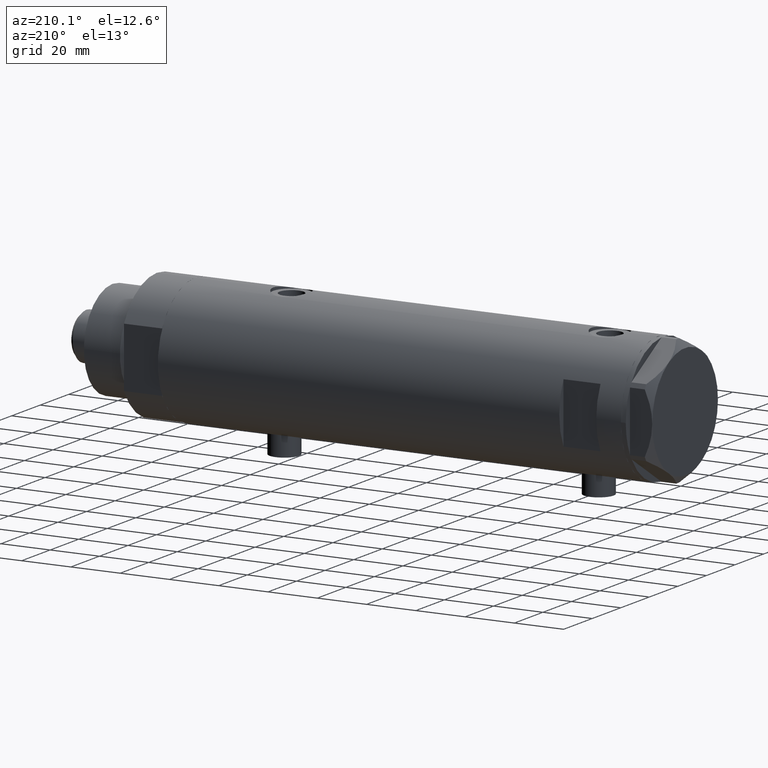
[diagram: clean part render]
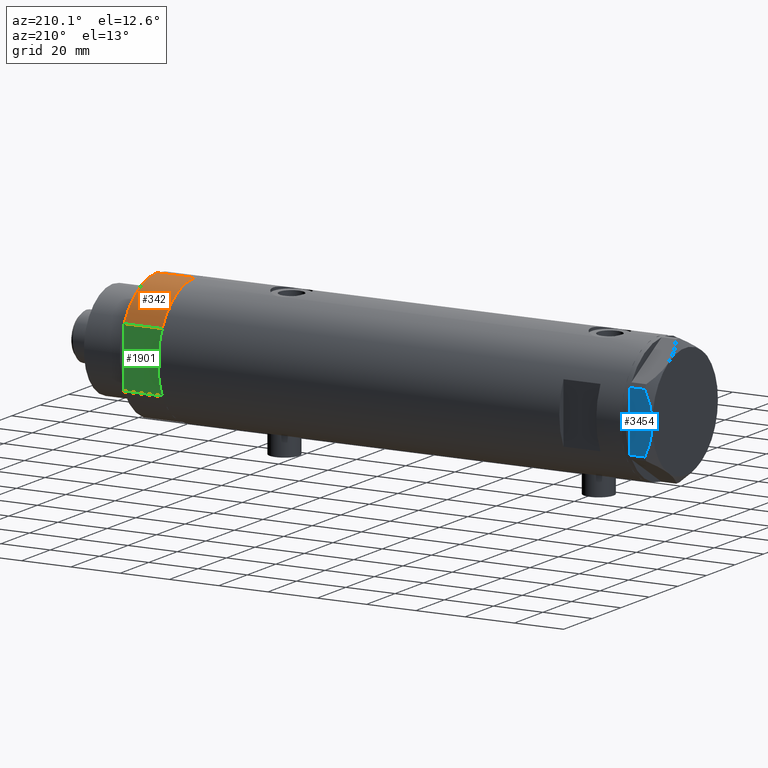
[diagram: same view with three faces highlighted in distinct colors, each labeled with its STEP entity id]
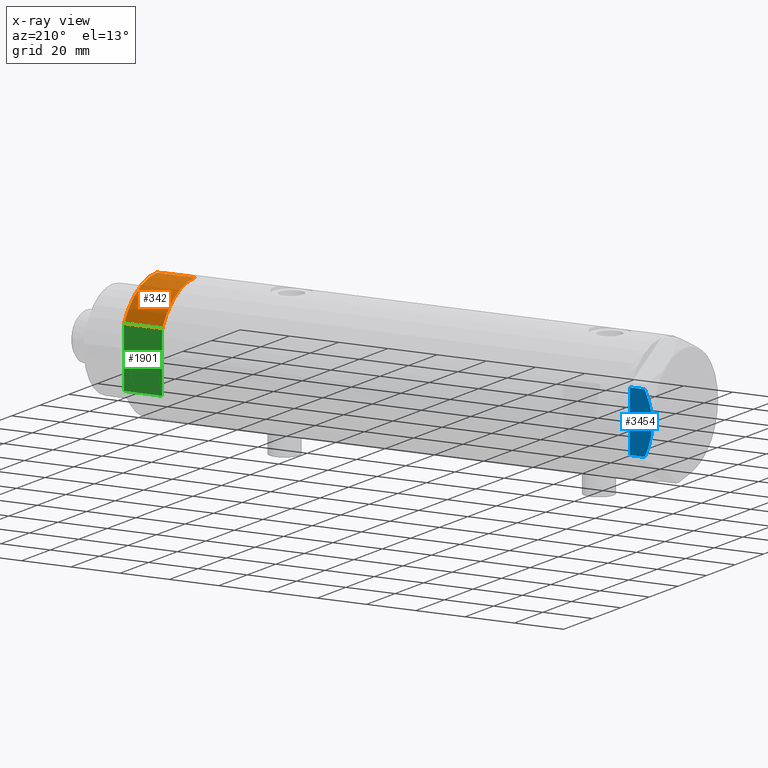
[diagram: x-ray of the same camera — body ghosted, the three highlighted faces saturated]
A machine part, auxiliary view with three faces highlighted in distinct colors.
The next image is the same camera in x-ray (body ghosted, the three faces saturated) — at least one of them is partly hidden behind the body in this view.
Their STEP definitions:

[orange] entity #342 — the highlighted cylindrical surface (partial cylindrical patch) has radius 26 mm, axis along (-1, -0, 0).
#33 = CIRCLE ( 'NONE', #947, 26.00000000000000355 ) ;
#157 = CARTESIAN_POINT ( 'NONE',  ( -12.12435565298215145, 23.00000000000000355, 0.000000000000000000 ) ) ;
#181 = LINE ( 'NONE', #157, #2702 ) ;
#306 = CARTESIAN_POINT ( 'NONE',  ( 0.000000000000000000, 0.000000000000000000, 15.50000000000000000 ) ) ;
#342 = ADVANCED_FACE ( 'NONE', ( #385 ), #3799, .T. ) ;
#385 = FACE_OUTER_BOUND ( 'NONE', #1810, .T. ) ;
#463 = VERTEX_POINT ( 'NONE', #3871 ) ;
#598 = LINE ( 'NONE', #2500, #1180 ) ;
#839 = ORIENTED_EDGE ( 'NONE', *, *, #861, .F. ) ;
#861 = EDGE_CURVE ( 'NONE', #2875, #3318, #181, .T. ) ;
#910 = CARTESIAN_POINT ( 'NONE',  ( -12.12435565298214613, 23.00000000000000355, 15.50000000000000000 ) ) ;
#947 = AXIS2_PLACEMENT_3D ( 'NONE', #4054, #4751, #1374 ) ;
#1180 = VECTOR ( 'NONE', #1390, 1000.000000000000000 ) ;
#1183 = VERTEX_POINT ( 'NONE', #4663 ) ;
#1243 = CARTESIAN_POINT ( 'NONE',  ( 0.000000000000000000, 0.000000000000000000, 15.50000000000000000 ) ) ;
#1322 = DIRECTION ( 'NONE',  ( 0.000000000000000000, 0.000000000000000000, 1.000000000000000000 ) ) ;
#1374 = DIRECTION ( 'NONE',  ( 1.000000000000000000, 0.000000000000000000, 0.000000000000000000 ) ) ;
#1390 = DIRECTION ( 'NONE',  ( -0.000000000000000000, -0.000000000000000000, -1.000000000000000000 ) ) ;
#1432 = CIRCLE ( 'NONE', #4198, 26.00000000000000355 ) ;
#1433 = EDGE_CURVE ( 'NONE', #3318, #1183, #1432, .T. ) ;
#1810 = EDGE_LOOP ( 'NONE', ( #3626, #3683, #839, #4265 ) ) ;
#1814 = DIRECTION ( 'NONE',  ( -1.000000000000000000, 0.000000000000000000, 0.000000000000000000 ) ) ;
#1888 = DIRECTION ( 'NONE',  ( -0.000000000000000000, -0.000000000000000000, -1.000000000000000000 ) ) ;
#1984 = AXIS2_PLACEMENT_3D ( 'NONE', #306, #1888, #1814 ) ;
#1995 = EDGE_CURVE ( 'NONE', #1183, #463, #598, .T. ) ;
#2350 = DIRECTION ( 'NONE',  ( 1.000000000000000000, 0.000000000000000000, 0.000000000000000000 ) ) ;
#2495 = CARTESIAN_POINT ( 'NONE',  ( -12.12435565298215145, 23.00000000000000355, 0.000000000000000000 ) ) ;
#2500 = CARTESIAN_POINT ( 'NONE',  ( -26.00000000000000355, 0.000000000000000000, 15.50000000000000000 ) ) ;
#2531 = DIRECTION ( 'NONE',  ( -0.000000000000000000, -0.000000000000000000, 1.000000000000000000 ) ) ;
#2702 = VECTOR ( 'NONE', #2531, 1000.000000000000000 ) ;
#2875 = VERTEX_POINT ( 'NONE', #2495 ) ;
#3107 = EDGE_CURVE ( 'NONE', #2875, #463, #33, .T. ) ;
#3318 = VERTEX_POINT ( 'NONE', #910 ) ;
#3626 = ORIENTED_EDGE ( 'NONE', *, *, #1995, .F. ) ;
#3683 = ORIENTED_EDGE ( 'NONE', *, *, #1433, .F. ) ;
#3799 = CYLINDRICAL_SURFACE ( 'NONE', #1984, 26.00000000000000355 ) ;
#3871 = CARTESIAN_POINT ( 'NONE',  ( -26.00000000000000355, 0.000000000000000000, 0.000000000000000000 ) ) ;
#4054 = CARTESIAN_POINT ( 'NONE',  ( 0.000000000000000000, 0.000000000000000000, 0.000000000000000000 ) ) ;
#4198 = AXIS2_PLACEMENT_3D ( 'NONE', #1243, #1322, #2350 ) ;
#4265 = ORIENTED_EDGE ( 'NONE', *, *, #3107, .T. ) ;
#4663 = CARTESIAN_POINT ( 'NONE',  ( -26.00000000000000355, 0.000000000000000000, 15.50000000000000000 ) ) ;
#4751 = DIRECTION ( 'NONE',  ( 0.000000000000000000, 0.000000000000000000, 1.000000000000000000 ) ) ;

[blue] entity #3454 — the highlighted planar face has unit normal (0, -1, 0).
#39 = CARTESIAN_POINT ( 'NONE',  ( 22.99999999999990763, 4.203926054642127319, 8.641681223122510858 ) ) ;
#50 = EDGE_CURVE ( 'NONE', #417, #1494, #603, .T. ) ;
#63 = CARTESIAN_POINT ( 'NONE',  ( 22.99999999999995026, 2.373657066004705010E-13, 9.000000000000000000 ) ) ;
#131 = CARTESIAN_POINT ( 'NONE',  ( 23.00000000000008527, -13.27905619136115867, 9.000000000000000000 ) ) ;
#161 = B_SPLINE_CURVE_WITH_KNOTS ( 'NONE', 3,
 ( #3940, #2036, #3556, #1225, #848, #172, #1672, #573, #3589, #4348 ),
 .UNSPECIFIED., .F., .F.,
 ( 4, 2, 2, 2, 4 ),
 ( 0.03516523594057417712, 0.03831677594541235687, 0.03989254594783144675, 0.04146831595025053663, 0.04777139595992689614 ),
 .UNSPECIFIED. ) ;
#172 = CARTESIAN_POINT ( 'NONE',  ( 23.00000000000002842, -7.239756182922028493, 7.892186063422852449 ) ) ;
#187 = VECTOR ( 'NONE', #3447, 1000.000000000000000 ) ;
#389 = LINE ( 'NONE', #4469, #500 ) ;
#417 = VERTEX_POINT ( 'NONE', #1981 ) ;
#455 = VERTEX_POINT ( 'NONE', #3061 ) ;
#500 = VECTOR ( 'NONE', #1891, 1000.000000000000000 ) ;
#562 = VECTOR ( 'NONE', #4843, 1000.000000000000000 ) ;
#573 = CARTESIAN_POINT ( 'NONE',  ( 22.99999999999999289, -4.194757081058811288, 8.703000351525204792 ) ) ;
#603 = LINE ( 'NONE', #3260, #3320 ) ;
#804 = EDGE_CURVE ( 'NONE', #1752, #417, #389, .T. ) ;
#848 = CARTESIAN_POINT ( 'NONE',  ( 23.00000000000003197, -8.246028007352183664, 7.571131808646910599 ) ) ;
#1005 = LINE ( 'NONE', #2201, #562 ) ;
#1224 = FACE_OUTER_BOUND ( 'NONE', #1795, .T. ) ;
#1225 = CARTESIAN_POINT ( 'NONE',  ( 23.00000000000004263, -8.748091966971204059, 7.396818978284578350 ) ) ;
#1234 = EDGE_CURVE ( 'NONE', #1752, #1403, #161, .T. ) ;
#1238 = LINE ( 'NONE', #2755, #4217 ) ;
#1272 = DIRECTION ( 'NONE',  ( 1.032024811306395780E-14, -1.000000000000000000, 0.000000000000000000 ) ) ;
#1329 = EDGE_CURVE ( 'NONE', #2305, #455, #1005, .T. ) ;
#1403 = VERTEX_POINT ( 'NONE', #4094 ) ;
#1424 = ORIENTED_EDGE ( 'NONE', *, *, #3516, .T. ) ;
#1470 = CARTESIAN_POINT ( 'NONE',  ( 22.99999999999993960, 1.063773509315896648, 8.981438083606837708 ) ) ;
#1494 = VERTEX_POINT ( 'NONE', #4780 ) ;
#1558 = CARTESIAN_POINT ( 'NONE',  ( 22.99999999999994671, 0.5295934231899334099, 9.000000000000095923 ) ) ;
#1599 = AXIS2_PLACEMENT_3D ( 'NONE', #131, #4640, #1272 ) ;
#1624 = CARTESIAN_POINT ( 'NONE',  ( 23.00000000000007461, -12.15905619136115412, 5.983800287807623519 ) ) ;
#1672 = CARTESIAN_POINT ( 'NONE',  ( 23.00000000000002132, -6.734330413511252722, 8.039389741252669808 ) ) ;
#1752 = VERTEX_POINT ( 'NONE', #1624 ) ;
#1795 = EDGE_LOOP ( 'NONE', ( #4593, #1968, #3016, #4027, #1894, #1424, #3268 ) ) ;
#1891 = DIRECTION ( 'NONE',  ( 0.000000000000000000, 0.000000000000000000, -1.000000000000000000 ) ) ;
#1894 = ORIENTED_EDGE ( 'NONE', *, *, #1329, .T. ) ;
#1932 = CARTESIAN_POINT ( 'NONE',  ( 22.99999999999987921, 7.253003311474552461, 7.903276810347635184 ) ) ;
#1964 = B_SPLINE_CURVE_WITH_KNOTS ( 'NONE', 3,
 ( #63, #1558, #1470, #2283, #3055, #39, #4850, #1932, #3412, #4566, #2958, #4484, #3441, #3003 ),
 .UNSPECIFIED., .F., .F.,
 ( 4, 2, 2, 2, 2, 2, 4 ),
 ( 0.04777139595992689614, 0.04934380568070229067, 0.05091621540147768521, 0.05406103484302848122, 0.05720585428457927030, 0.05877826400535466483, 0.06035067372613005937 ),
 .UNSPECIFIED. ) ;
#1968 = ORIENTED_EDGE ( 'NONE', *, *, #804, .T. ) ;
#1981 = CARTESIAN_POINT ( 'NONE',  ( 23.00000000000007461, -12.15905619136115590, 0.000000000000000000 ) ) ;
#2027 = VERTEX_POINT ( 'NONE', #2278 ) ;
#2036 = CARTESIAN_POINT ( 'NONE',  ( 23.00000000000006395, -11.20825071633898240, 6.428173306378455187 ) ) ;
#2201 = CARTESIAN_POINT ( 'NONE',  ( 23.00000000000008527, -13.27905619136115867, 0.000000000000000000 ) ) ;
#2278 = CARTESIAN_POINT ( 'NONE',  ( 22.99999999999982236, 12.15905619136164262, 5.983800287807618190 ) ) ;
#2283 = CARTESIAN_POINT ( 'NONE',  ( 22.99999999999992539, 2.119709279062085727, 8.908535212173203988 ) ) ;
#2305 = VERTEX_POINT ( 'NONE', #2496 ) ;
#2392 = DIRECTION ( 'NONE',  ( 0.000000000000000000, 0.000000000000000000, 1.000000000000000000 ) ) ;
#2496 = CARTESIAN_POINT ( 'NONE',  ( 22.99999999999982592, 12.12435565298247653, 0.000000000000000000 ) ) ;
#2658 = EDGE_CURVE ( 'NONE', #1403, #2027, #1964, .T. ) ;
#2700 = LINE ( 'NONE', #4195, #187 ) ;
#2739 = PLANE ( 'NONE',  #1599 ) ;
#2755 = CARTESIAN_POINT ( 'NONE',  ( 22.99999999999982236, 12.15905619136163729, 9.000000000000000000 ) ) ;
#2958 = CARTESIAN_POINT ( 'NONE',  ( 22.99999999999983658, 10.22738952213810926, 6.832470313674774864 ) ) ;
#3003 = CARTESIAN_POINT ( 'NONE',  ( 22.99999999999982236, 12.15905619136164262, 5.983800287807618190 ) ) ;
#3016 = ORIENTED_EDGE ( 'NONE', *, *, #50, .T. ) ;
#3055 = CARTESIAN_POINT ( 'NONE',  ( 22.99999999999992184, 2.643615312305318099, 8.854304560636265364 ) ) ;
#3061 = CARTESIAN_POINT ( 'NONE',  ( 22.99999999999982236, 12.15905619136163729, 0.000000000000000000 ) ) ;
#3260 = CARTESIAN_POINT ( 'NONE',  ( 23.00000000000008527, -13.27905619136115867, 0.000000000000000000 ) ) ;
#3268 = ORIENTED_EDGE ( 'NONE', *, *, #2658, .F. ) ;
#3320 = VECTOR ( 'NONE', #3616, 1000.000000000000000 ) ;
#3412 = CARTESIAN_POINT ( 'NONE',  ( 22.99999999999986500, 8.252113629125430450, 7.581642062680224115 ) ) ;
#3441 = CARTESIAN_POINT ( 'NONE',  ( 22.99999999999982947, 11.68282849742352525, 6.206372352695418648 ) ) ;
#3447 = DIRECTION ( 'NONE',  ( -1.032024811306395780E-14, 1.000000000000000000, 0.000000000000000000 ) ) ;
#3454 = ADVANCED_FACE ( 'NONE', ( #1224 ), #2739, .F. ) ;
#3516 = EDGE_CURVE ( 'NONE', #455, #2027, #1238, .T. ) ;
#3556 = CARTESIAN_POINT ( 'NONE',  ( 23.00000000000005684, -10.23890159976104641, 6.840812428290920622 ) ) ;
#3589 = CARTESIAN_POINT ( 'NONE',  ( 22.99999999999997513, -2.122900714017905699, 9.000000000000095923 ) ) ;
#3616 = DIRECTION ( 'NONE',  ( -1.032024811306395780E-14, 1.000000000000000000, 0.000000000000000000 ) ) ;
#3940 = CARTESIAN_POINT ( 'NONE',  ( 23.00000000000007461, -12.15905619136115412, 5.983800287807623519 ) ) ;
#4027 = ORIENTED_EDGE ( 'NONE', *, *, #4355, .T. ) ;
#4094 = CARTESIAN_POINT ( 'NONE',  ( 22.99999999999995026, 2.373657066004705010E-13, 9.000000000000000000 ) ) ;
#4195 = CARTESIAN_POINT ( 'NONE',  ( 23.00000000000008527, -13.27905619136115867, 0.000000000000000000 ) ) ;
#4217 = VECTOR ( 'NONE', #2392, 1000.000000000000000 ) ;
#4348 = CARTESIAN_POINT ( 'NONE',  ( 22.99999999999995026, 2.373657066004705010E-13, 9.000000000000000000 ) ) ;
#4355 = EDGE_CURVE ( 'NONE', #1494, #2305, #2700, .T. ) ;
#4469 = CARTESIAN_POINT ( 'NONE',  ( 23.00000000000007461, -12.15905619136115590, 9.000000000000000000 ) ) ;
#4484 = CARTESIAN_POINT ( 'NONE',  ( 22.99999999999984368, 11.20155944044832630, 6.421102682632754188 ) ) ;
#4566 = CARTESIAN_POINT ( 'NONE',  ( 22.99999999999985079, 9.734726261263462632, 7.028924700095659617 ) ) ;
#4593 = ORIENTED_EDGE ( 'NONE', *, *, #1234, .F. ) ;
#4640 = DIRECTION ( 'NONE',  ( -1.000000000000000000, -1.032024811306395780E-14, 0.000000000000000000 ) ) ;
#4780 = CARTESIAN_POINT ( 'NONE',  ( 23.00000000000007461, -12.12435565298200224, 0.000000000000000000 ) ) ;
#4843 = DIRECTION ( 'NONE',  ( -1.032024811306395780E-14, 1.000000000000000000, 0.000000000000000000 ) ) ;
#4850 = CARTESIAN_POINT ( 'NONE',  ( 22.99999999999990052, 5.228918809624284236, 8.433337033849852560 ) ) ;

[green] entity #1901 — the highlighted planar face has unit normal (0, -1, -0).
#157 = CARTESIAN_POINT ( 'NONE',  ( -12.12435565298215145, 23.00000000000000355, 0.000000000000000000 ) ) ;
#181 = LINE ( 'NONE', #157, #2702 ) ;
#582 = CARTESIAN_POINT ( 'NONE',  ( -12.12435565298215145, 23.00000000000000355, 15.50000000000000000 ) ) ;
#697 = VERTEX_POINT ( 'NONE', #4368 ) ;
#698 = CARTESIAN_POINT ( 'NONE',  ( -12.12435565298215145, 23.00000000000000355, 0.000000000000000000 ) ) ;
#812 = EDGE_CURVE ( 'NONE', #3424, #697, #2965, .T. ) ;
#861 = EDGE_CURVE ( 'NONE', #2875, #3318, #181, .T. ) ;
#910 = CARTESIAN_POINT ( 'NONE',  ( -12.12435565298214613, 23.00000000000000355, 15.50000000000000000 ) ) ;
#979 = PLANE ( 'NONE',  #3236 ) ;
#1027 = DIRECTION ( 'NONE',  ( 0.000000000000000000, -0.000000000000000000, -1.000000000000000000 ) ) ;
#1216 = ORIENTED_EDGE ( 'NONE', *, *, #812, .F. ) ;
#1540 = DIRECTION ( 'NONE',  ( 1.000000000000000000, 0.000000000000000000, 0.000000000000000000 ) ) ;
#1767 = VECTOR ( 'NONE', #1540, 1000.000000000000000 ) ;
#1779 = DIRECTION ( 'NONE',  ( 0.000000000000000000, -1.000000000000000000, 0.000000000000000000 ) ) ;
#1901 = ADVANCED_FACE ( 'NONE', ( #4424 ), #979, .F. ) ;
#2146 = CARTESIAN_POINT ( 'NONE',  ( -12.12435565298215145, 23.00000000000000355, 0.000000000000000000 ) ) ;
#2382 = ORIENTED_EDGE ( 'NONE', *, *, #861, .T. ) ;
#2453 = EDGE_CURVE ( 'NONE', #3318, #697, #3969, .T. ) ;
#2495 = CARTESIAN_POINT ( 'NONE',  ( -12.12435565298215145, 23.00000000000000355, 0.000000000000000000 ) ) ;
#2531 = DIRECTION ( 'NONE',  ( -0.000000000000000000, -0.000000000000000000, 1.000000000000000000 ) ) ;
#2702 = VECTOR ( 'NONE', #2531, 1000.000000000000000 ) ;
#2846 = VECTOR ( 'NONE', #3037, 1000.000000000000000 ) ;
#2875 = VERTEX_POINT ( 'NONE', #2495 ) ;
#2965 = LINE ( 'NONE', #3395, #3814 ) ;
#3037 = DIRECTION ( 'NONE',  ( 1.000000000000000000, 0.000000000000000000, 0.000000000000000000 ) ) ;
#3181 = CARTESIAN_POINT ( 'NONE',  ( 12.12435565298214080, 23.00000000000000355, 0.000000000000000000 ) ) ;
#3236 = AXIS2_PLACEMENT_3D ( 'NONE', #2146, #1779, #1027 ) ;
#3318 = VERTEX_POINT ( 'NONE', #910 ) ;
#3395 = CARTESIAN_POINT ( 'NONE',  ( 12.12435565298215323, 23.00000000000000355, 0.000000000000000000 ) ) ;
#3424 = VERTEX_POINT ( 'NONE', #3181 ) ;
#3444 = ORIENTED_EDGE ( 'NONE', *, *, #4264, .F. ) ;
#3798 = LINE ( 'NONE', #698, #1767 ) ;
#3814 = VECTOR ( 'NONE', #4805, 1000.000000000000000 ) ;
#3969 = LINE ( 'NONE', #582, #2846 ) ;
#4020 = ORIENTED_EDGE ( 'NONE', *, *, #2453, .T. ) ;
#4197 = EDGE_LOOP ( 'NONE', ( #4020, #1216, #3444, #2382 ) ) ;
#4264 = EDGE_CURVE ( 'NONE', #2875, #3424, #3798, .T. ) ;
#4368 = CARTESIAN_POINT ( 'NONE',  ( 12.12435565298214790, 23.00000000000000355, 15.50000000000000000 ) ) ;
#4424 = FACE_OUTER_BOUND ( 'NONE', #4197, .T. ) ;
#4805 = DIRECTION ( 'NONE',  ( -0.000000000000000000, -0.000000000000000000, 1.000000000000000000 ) ) ;